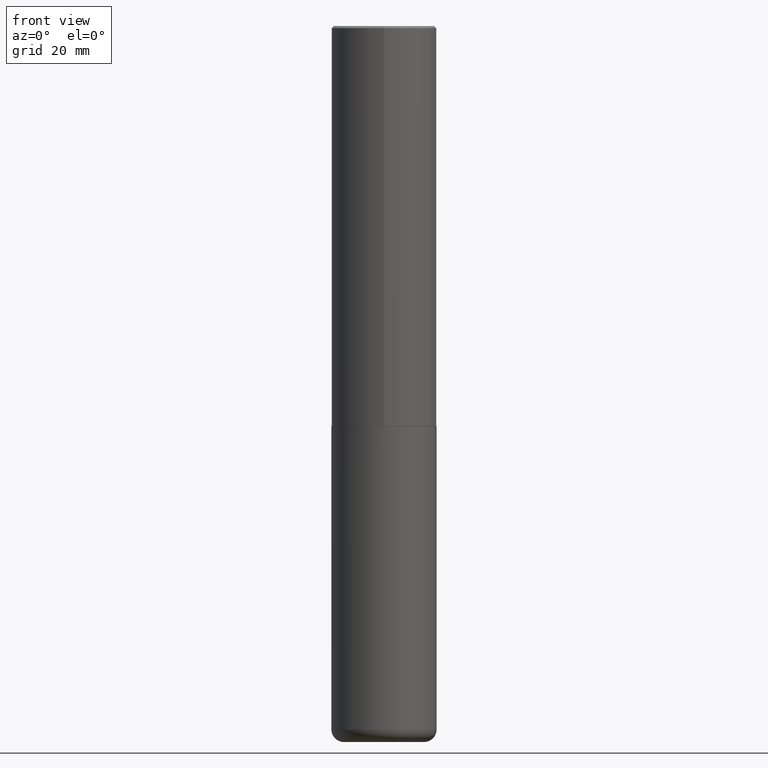
[diagram: clean part render]
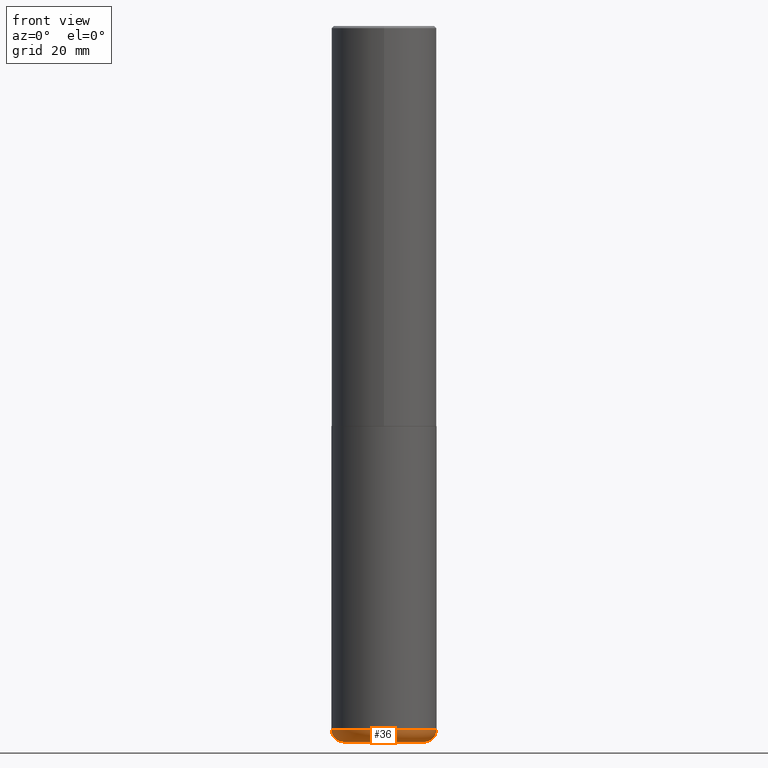
[diagram: same view with one face highlighted and labeled with its STEP entity id]
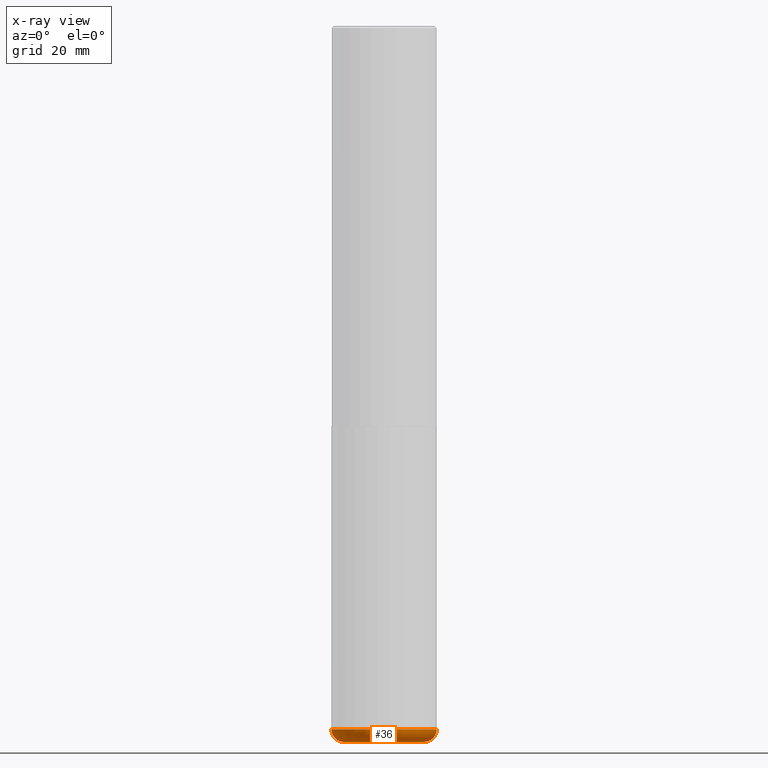
[diagram: x-ray of the same camera — body ghosted, the highlighted face saturated]
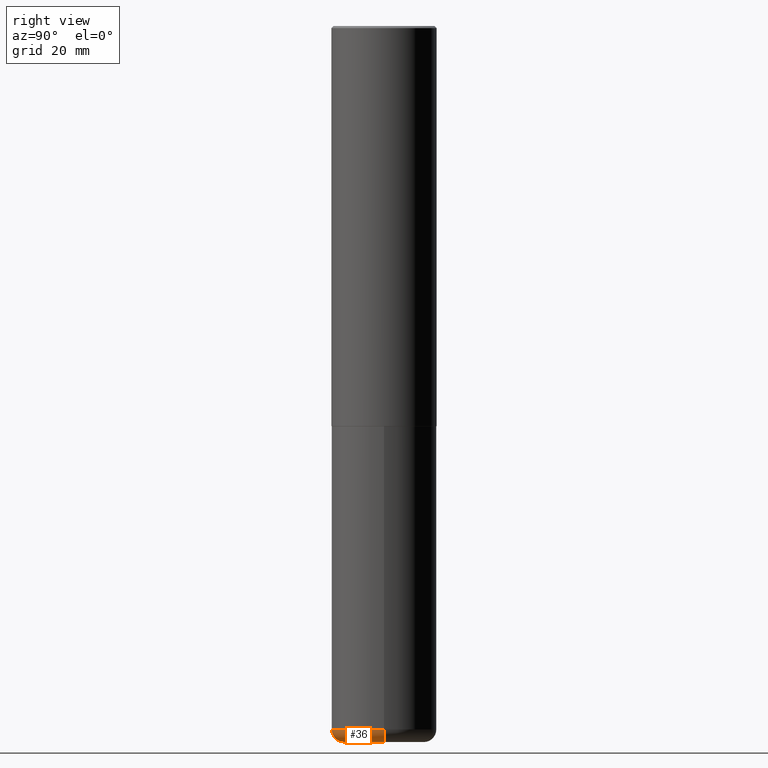
[diagram: same view with one face highlighted and labeled with its STEP entity id]
A machine part, front view. The second image highlights one B-rep face of the part: STEP entity #36.
The next image is the same camera in x-ray: the body ghosted, the highlighted face saturated — about 0% of this face is hidden behind the body in this view.
A second angle (right view) of the same face is appended — the face is thin or edge-on in the first view.
In plain terms, the highlighted toroidal blend (fillet) surface has major radius 9.5009 mm and minor (blend) radius 2.9997 mm.
Its self-contained STEP definition (entity closure, byte-faithful):
#7 = DIRECTION ( 'NONE',  ( -2.445468806185136597E-29, 3.491481338843145583E-15, 1.000000000000000000 ) ) ;
#12 = VERTEX_POINT ( 'NONE', #20 ) ;
#16 = ORIENTED_EDGE ( 'NONE', *, *, #142, .T. ) ;
#18 = ORIENTED_EDGE ( 'NONE', *, *, #411, .F. ) ;
#20 = CARTESIAN_POINT ( 'NONE',  ( -0.4921499999999999764, -1.945885543258258157E-14, -6.574799999999999756 ) ) ;
#28 = TOROIDAL_SURFACE ( 'NONE', #75, 0.3740499999999999381, 0.1181000000000000660 ) ;
#30 = EDGE_CURVE ( 'NONE', #40, #282, #46, .T. ) ;
#35 = AXIS2_PLACEMENT_3D ( 'NONE', #228, #7, #361 ) ;
#36 = ADVANCED_FACE ( 'NONE', ( #151 ), #28, .T. ) ;
#40 = VERTEX_POINT ( 'NONE', #251 ) ;
#46 = CIRCLE ( 'NONE', #305, 0.3740499999999999381 ) ;
#63 = CARTESIAN_POINT ( 'NONE',  ( 1.607846830690603466E-28, -2.295579150662591525E-14, -6.574799999999999756 ) ) ;
#75 = AXIS2_PLACEMENT_3D ( 'NONE', #63, #218, #179 ) ;
#80 = ORIENTED_EDGE ( 'NONE', *, *, #30, .T. ) ;
#83 = EDGE_LOOP ( 'NONE', ( #18, #80, #16, #158 ) ) ;
#127 = CARTESIAN_POINT ( 'NONE',  ( 0.3740499999999999381, -2.556776869621446119E-14, -6.574799999999999756 ) ) ;
#130 = CARTESIAN_POINT ( 'NONE',  ( 0.3740499999999999381, -2.598011264233183690E-14, -6.692899999999999849 ) ) ;
#142 = EDGE_CURVE ( 'NONE', #282, #167, #340, .T. ) ;
#151 = FACE_OUTER_BOUND ( 'NONE', #83, .T. ) ;
#158 = ORIENTED_EDGE ( 'NONE', *, *, #248, .F. ) ;
#167 = VERTEX_POINT ( 'NONE', #222 ) ;
#179 = DIRECTION ( 'NONE',  ( 1.000000000000000000, -6.982962677686266711E-15, 4.883557194083112340E-29 ) ) ;
#183 = AXIS2_PLACEMENT_3D ( 'NONE', #127, #294, #260 ) ;
#189 = CARTESIAN_POINT ( 'NONE',  ( -0.3740499999999999381, -2.029800640351526055E-14, -6.574799999999999756 ) ) ;
#191 = DIRECTION ( 'NONE',  ( -1.000000000000000000, 7.105427357601001859E-15, 0.000000000000000000 ) ) ;
#215 = CIRCLE ( 'NONE', #35, 0.4921500000000000319 ) ;
#218 = DIRECTION ( 'NONE',  ( -2.445468806185136597E-29, 3.491481338843145583E-15, 1.000000000000000000 ) ) ;
#222 = CARTESIAN_POINT ( 'NONE',  ( 0.4921499999999999764, -2.639245658844920945E-14, -6.574799999999999756 ) ) ;
#228 = CARTESIAN_POINT ( 'NONE',  ( 1.607846830690603466E-28, -2.295579150662591525E-14, -6.574799999999999756 ) ) ;
#248 = EDGE_CURVE ( 'NONE', #12, #167, #215, .T. ) ;
#250 = CARTESIAN_POINT ( 'NONE',  ( 1.636727817291649966E-28, -2.336813545274328780E-14, -6.692899999999999849 ) ) ;
#251 = CARTESIAN_POINT ( 'NONE',  ( -0.3740499999999999381, -2.008460289110760576E-14, -6.692899999999999849 ) ) ;
#260 = DIRECTION ( 'NONE',  ( 1.000000000000000000, -6.982962677686270655E-15, 0.000000000000000000 ) ) ;
#282 = VERTEX_POINT ( 'NONE', #130 ) ;
#294 = DIRECTION ( 'NONE',  ( -6.982962677686266711E-15, -1.000000000000000000, 3.491481338843145583E-15 ) ) ;
#305 = AXIS2_PLACEMENT_3D ( 'NONE', #250, #378, #416 ) ;
#340 = CIRCLE ( 'NONE', #183, 0.1181000000000000383 ) ;
#357 = DIRECTION ( 'NONE',  ( 7.105427357601001859E-15, 1.000000000000000000, -3.491481338843145583E-15 ) ) ;
#361 = DIRECTION ( 'NONE',  ( 1.000000000000000000, -6.982962677686265133E-15, 0.000000000000000000 ) ) ;
#378 = DIRECTION ( 'NONE',  ( -2.445468806185136597E-29, 3.491481338843145583E-15, 1.000000000000000000 ) ) ;
#385 = CIRCLE ( 'NONE', #392, 0.1181000000000000383 ) ;
#392 = AXIS2_PLACEMENT_3D ( 'NONE', #189, #357, #191 ) ;
#411 = EDGE_CURVE ( 'NONE', #40, #12, #385, .T. ) ;
#416 = DIRECTION ( 'NONE',  ( 1.000000000000000000, -6.982962677686265133E-15, 0.000000000000000000 ) ) ;